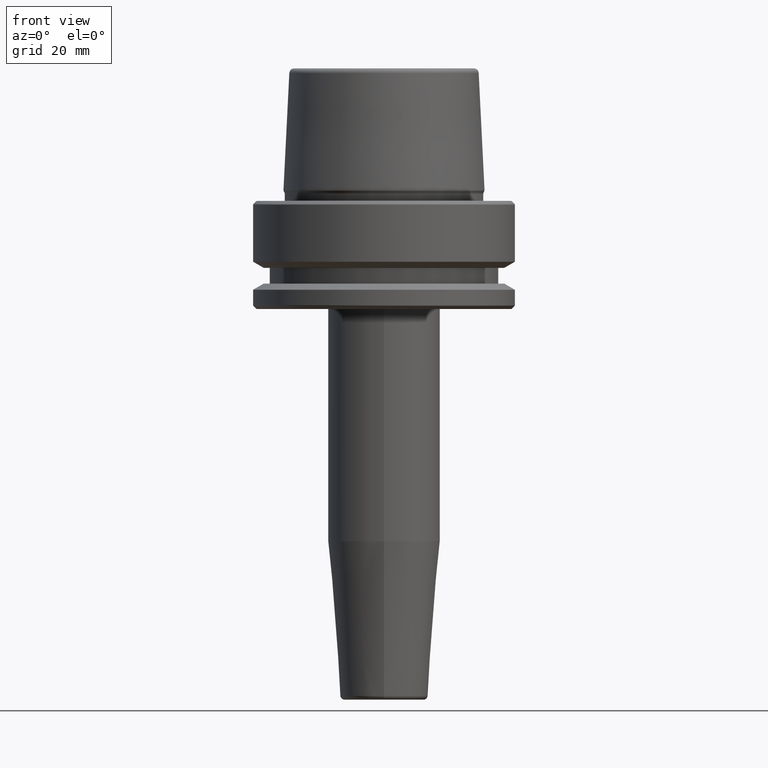
[diagram: clean part render]
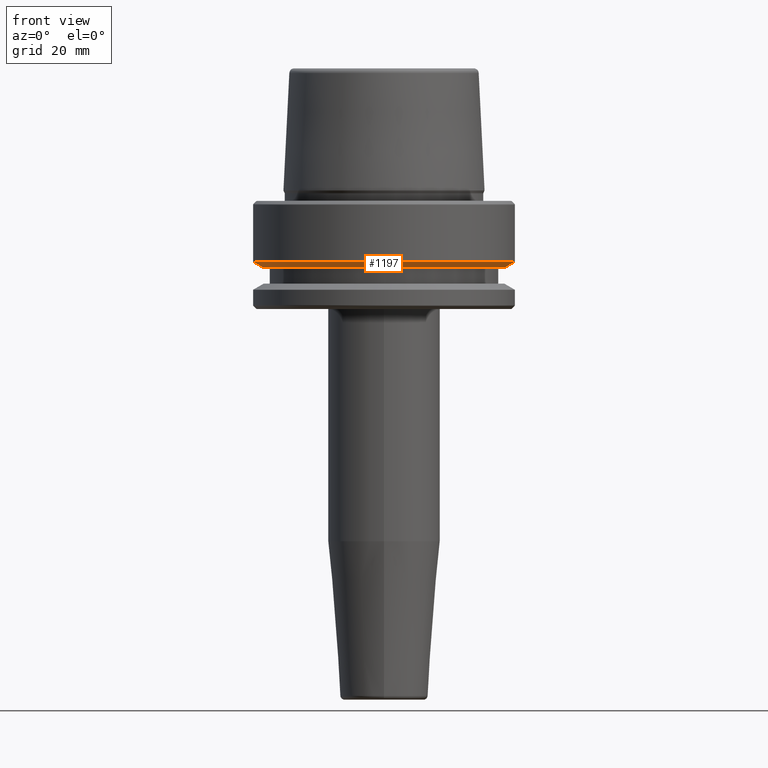
[diagram: same view with one face highlighted and labeled with its STEP entity id]
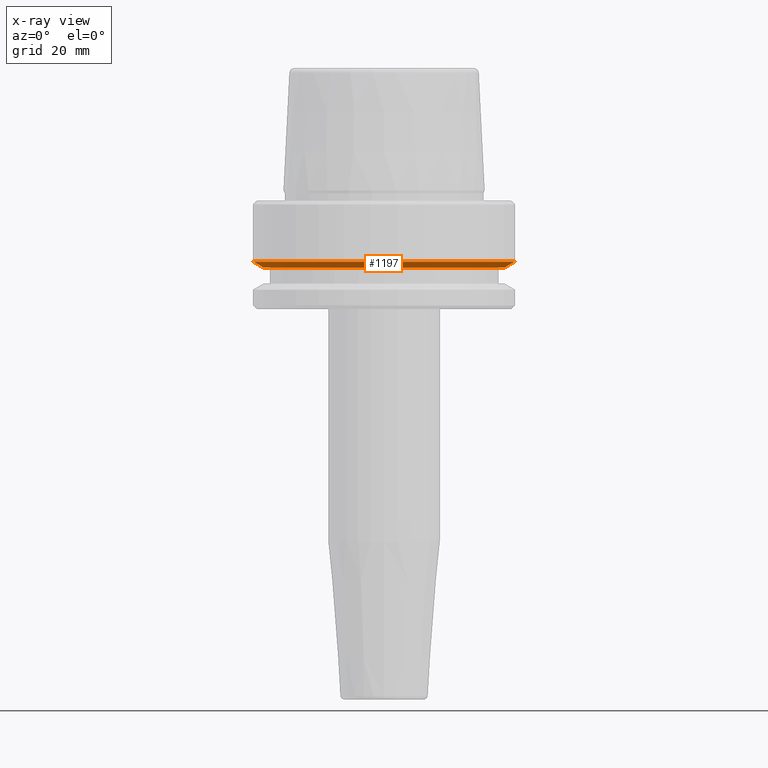
[diagram: x-ray of the same camera — body ghosted, the highlighted face saturated]
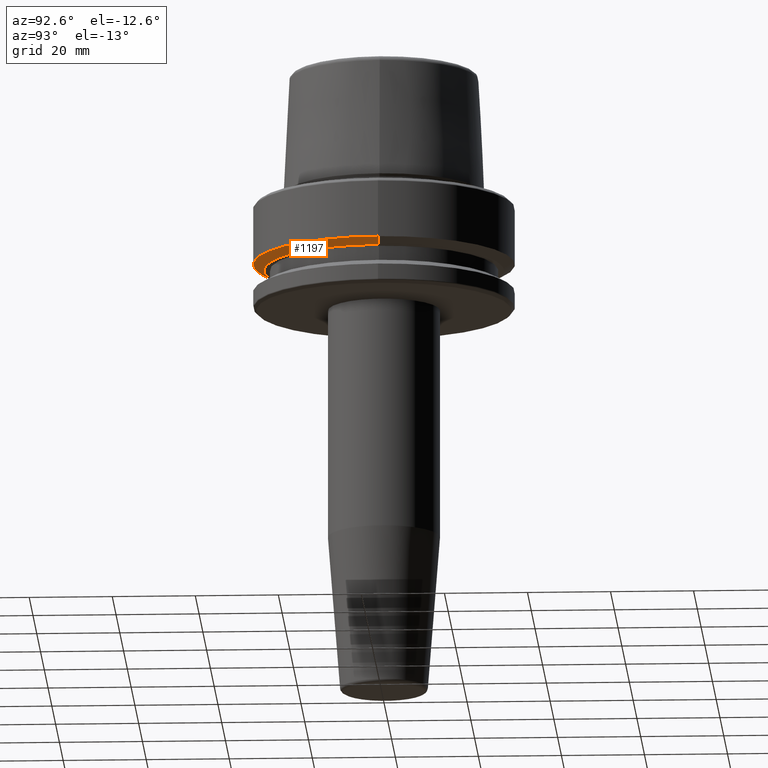
[diagram: same view with one face highlighted and labeled with its STEP entity id]
A machine part, front view. The second image highlights one B-rep face of the part: STEP entity #1197.
The next image is the same camera in x-ray: the body ghosted, the highlighted face saturated — about 0% of this face is hidden behind the body in this view.
A second angle (auxiliary view) of the same face is appended — the face is thin or edge-on in the first view.
In plain terms, the highlighted conical surface has half-angle 60 deg.
Its self-contained STEP definition (entity closure, byte-faithful):
#2 = CARTESIAN_POINT ( 'NONE',  ( 0.0000000000000000000, 0.0000000000000000000, -16.10000000000001600 ) ) ;
#6 = LINE ( 'NONE', #152, #976 ) ;
#43 = AXIS2_PLACEMENT_3D ( 'NONE', #396, #292, #677 ) ;
#87 = EDGE_CURVE ( 'NONE', #800, #312, #521, .T. ) ;
#89 = DIRECTION ( 'NONE',  ( 1.000000000000000000, 0.0000000000000000000, 0.0000000000000000000 ) ) ;
#101 = VERTEX_POINT ( 'NONE', #303 ) ;
#152 = CARTESIAN_POINT ( 'NONE',  ( 28.94089653438085100, 0.0000000000000000000, -16.10000000000001600 ) ) ;
#162 = FACE_OUTER_BOUND ( 'NONE', #1243, .T. ) ;
#167 = VERTEX_POINT ( 'NONE', #796 ) ;
#206 = EDGE_CURVE ( 'NONE', #312, #101, #900, .T. ) ;
#261 = DIRECTION ( 'NONE',  ( -0.8660254037844389300, 1.060575238724907300E-016, 0.4999999999999995000 ) ) ;
#292 = DIRECTION ( 'NONE',  ( -0.0000000000000000000, -0.0000000000000000000, 1.000000000000000000 ) ) ;
#299 = EDGE_CURVE ( 'NONE', #167, #101, #6, .T. ) ;
#303 = CARTESIAN_POINT ( 'NONE',  ( 31.50000000000000000, 0.0000000000000000000, -14.62250092524070100 ) ) ;
#312 = VERTEX_POINT ( 'NONE', #863 ) ;
#390 = AXIS2_PLACEMENT_3D ( 'NONE', #522, #1211, #616 ) ;
#396 = CARTESIAN_POINT ( 'NONE',  ( 0.0000000000000000000, 0.0000000000000000000, -16.10000000000001600 ) ) ;
#398 = VECTOR ( 'NONE', #261, 1000.000000000000000 ) ;
#446 = ORIENTED_EDGE ( 'NONE', *, *, #87, .F. ) ;
#521 = LINE ( 'NONE', #553, #398 ) ;
#522 = CARTESIAN_POINT ( 'NONE',  ( 0.0000000000000000000, 0.0000000000000000000, -14.62250092524070100 ) ) ;
#531 = DIRECTION ( 'NONE',  ( 0.8660254037844389300, 0.0000000000000000000, 0.4999999999999995000 ) ) ;
#553 = CARTESIAN_POINT ( 'NONE',  ( -28.94089653438085100, 3.544237630528423800E-015, -16.10000000000001600 ) ) ;
#616 = DIRECTION ( 'NONE',  ( 1.000000000000000000, 0.0000000000000000000, 0.0000000000000000000 ) ) ;
#664 = DIRECTION ( 'NONE',  ( -0.0000000000000000000, -0.0000000000000000000, 1.000000000000000000 ) ) ;
#677 = DIRECTION ( 'NONE',  ( 1.000000000000000000, 0.0000000000000000000, 0.0000000000000000000 ) ) ;
#736 = AXIS2_PLACEMENT_3D ( 'NONE', #2, #664, #89 ) ;
#796 = CARTESIAN_POINT ( 'NONE',  ( 28.94089653438085100, 0.0000000000000000000, -16.10000000000001600 ) ) ;
#800 = VERTEX_POINT ( 'NONE', #1240 ) ;
#863 = CARTESIAN_POINT ( 'NONE',  ( -31.50000000000000000, 3.857637417314162700E-015, -14.62250092524070100 ) ) ;
#900 = CIRCLE ( 'NONE', #390, 31.50000000000000000 ) ;
#930 = ORIENTED_EDGE ( 'NONE', *, *, #1032, .T. ) ;
#936 = ORIENTED_EDGE ( 'NONE', *, *, #299, .T. ) ;
#976 = VECTOR ( 'NONE', #531, 1000.000000000000000 ) ;
#1009 = ORIENTED_EDGE ( 'NONE', *, *, #206, .F. ) ;
#1032 = EDGE_CURVE ( 'NONE', #800, #167, #1089, .T. ) ;
#1089 = CIRCLE ( 'NONE', #736, 28.94089653438085100 ) ;
#1197 = ADVANCED_FACE ( 'NONE', ( #162 ), #1235, .T. ) ;
#1211 = DIRECTION ( 'NONE',  ( -0.0000000000000000000, -0.0000000000000000000, 1.000000000000000000 ) ) ;
#1235 = CONICAL_SURFACE ( 'NONE', #43, 28.94089653438085100, 1.047197551196598300 ) ;
#1240 = CARTESIAN_POINT ( 'NONE',  ( -28.94089653438085100, 3.700937523921292900E-015, -16.10000000000001600 ) ) ;
#1243 = EDGE_LOOP ( 'NONE', ( #446, #930, #936, #1009 ) ) ;